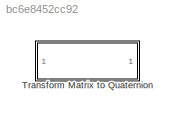
MODEL slx_bc6e8452cc92
KIND library
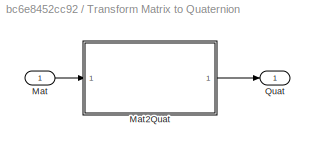
BLOCK [SubSystem] Transform Matrix to Quaternion
  Ports = [1, 1]
  RequestExecContextInheritance = off
BLOCK [Inport] Transform Matrix to Quaternion/Mat
  IconDisplay = Port number
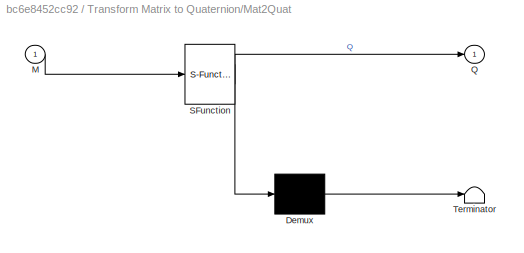
BLOCK [SubSystem] Transform Matrix to Quaternion/Mat2Quat
  ErrorFcn = Stateflow.Translate.translate
  PermitHierarchicalResolution = ExplicitOnly
  Ports = [1, 1]
  RequestExecContextInheritance = off
  SFBlockType = MATLAB Function
  TreatAsAtomicUnit = on
BLOCK [Demux] Transform Matrix to Quaternion/Mat2Quat/ Demux 
  Outputs = 1
  Ports = [1, 1]
BLOCK [S-Function] Transform Matrix to Quaternion/Mat2Quat/ SFunction 
  EnableBusSupport = off
  FunctionName = sf_sfun
  PortCounts = [1 2]
  Ports = [1, 2]
  Tag = Stateflow S-Function Mat2Qua 2
BLOCK [Terminator] Transform Matrix to Quaternion/Mat2Quat/ Terminator 
BLOCK [Inport] Transform Matrix to Quaternion/Mat2Quat/M
  IconDisplay = Port number
BLOCK [Outport] Transform Matrix to Quaternion/Mat2Quat/Q
  IconDisplay = Port number
BLOCK [Outport] Transform Matrix to Quaternion/Quat
  IconDisplay = Port number
LINE Transform Matrix to Quaternion/Mat2Quat:1 -> Transform Matrix to Quaternion/Quat:1
LINE Transform Matrix to Quaternion/Mat:1 -> Transform Matrix to Quaternion/Mat2Quat:1
CHART Transform Matrix to Quaternion/Mat2Quat states=1 transitions=1
  STATE_LABEL 'eML_blk_kernel()'
  STATE_LABEL 'SCRIPT:\nfunction Q=Mat2Quat(M)\n% R1->R2 quaternion calculation corresponding to the TRANSFORM matrix M\n% (transpose of change of basis matrix) from R1 to R2 (direct orthogonal)\n% such that V[R2]=M*V[R1]\n[~,I]=max(diag(M));  % Indice I du maximum de la diagonal de M\n% I=I(1);\nu=I; v=rem(I,3)+1; w=rem(I+1,3)+1; % Calcul des autres indices\nr=sqrt(1+M(u,u)-M(v,v)-M(w,w));\nQ=zeros(4,1);\nif r==0\n   Q=[1...<+115ch>'
